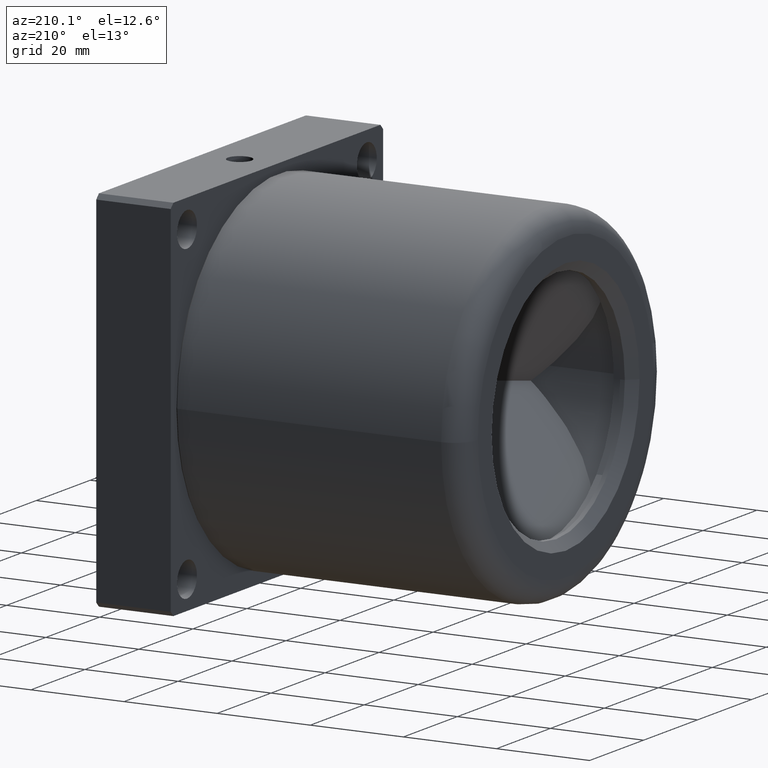
[diagram: clean part render]
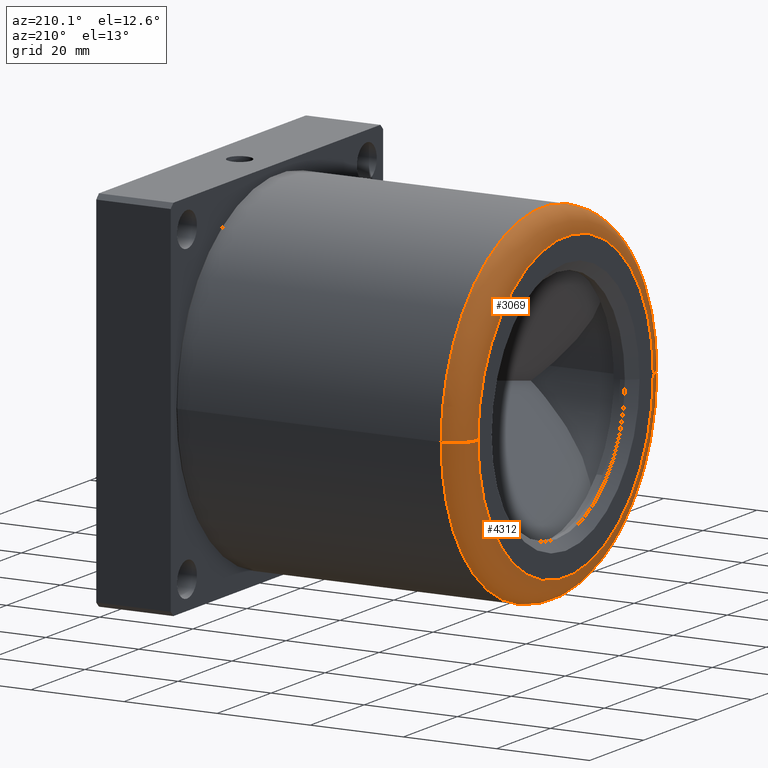
[diagram: same view with one multi-face feature highlighted, each face labeled with its STEP entity id]
A machine part, auxiliary view. The highlighted faces form ONE feature: a constant-radius fillet chain: 2 tangent blend faces with common blend radius 5 mm. The faces share edges in the B-rep.
Their STEP definitions:
[1] entity #3069 (Torus):
#529 = CARTESIAN_POINT ( 'NONE',  ( -73.00000000000000000, -118.0500000000000000, 1.387778780781446000E-014 ) ) ;
#561 = DIRECTION ( 'NONE',  ( -1.000000000000000000, 0.0000000000000000000, 0.0000000000000000000 ) ) ;
#643 = AXIS2_PLACEMENT_3D ( 'NONE', #8660, #3744, #9507 ) ;
#1159 = VERTEX_POINT ( 'NONE', #7956 ) ;
#1291 = EDGE_CURVE ( 'NONE', #1159, #10380, #4218, .T. ) ;
#1348 = DIRECTION ( 'NONE',  ( 1.000000000000000000, -0.0000000000000000000, -0.0000000000000000000 ) ) ;
#1677 = CIRCLE ( 'NONE', #643, 32.50000000000001400 ) ;
#1722 = DIRECTION ( 'NONE',  ( 0.0000000000000000000, -1.000000000000000000, 1.086874326387429400E-014 ) ) ;
#1805 = ORIENTED_EDGE ( 'NONE', *, *, #10848, .F. ) ;
#2223 = FACE_OUTER_BOUND ( 'NONE', #3879, .T. ) ;
#2277 = AXIS2_PLACEMENT_3D ( 'NONE', #529, #561, #6474 ) ;
#2603 = CARTESIAN_POINT ( 'NONE',  ( -73.00000000000000000, -85.54999999999999700, -3.393563682681004500E-013 ) ) ;
#2659 = CARTESIAN_POINT ( 'NONE',  ( -73.00000000000000000, -155.5499999999999800, 4.306405111967061300E-013 ) ) ;
#3005 = VERTEX_POINT ( 'NONE', #5536 ) ;
#3069 = ADVANCED_FACE ( 'NONE', ( #2223 ), #3407, .T. ) ;
#3080 = DIRECTION ( 'NONE',  ( -0.0000000000000000000, -1.099120794378904000E-014, -1.000000000000000000 ) ) ;
#3325 = AXIS2_PLACEMENT_3D ( 'NONE', #6385, #1348, #7172 ) ;
#3407 = TOROIDAL_SURFACE ( 'NONE', #2277, 32.50000000000000000, 5.000000000000000000 ) ;
#3744 = DIRECTION ( 'NONE',  ( -1.000000000000000000, 0.0000000000000000000, 0.0000000000000000000 ) ) ;
#3772 = ORIENTED_EDGE ( 'NONE', *, *, #9952, .F. ) ;
#3879 = EDGE_LOOP ( 'NONE', ( #1805, #6256, #8099, #3772 ) ) ;
#4218 = CIRCLE ( 'NONE', #8961, 5.000000000000004400 ) ;
#5493 = EDGE_CURVE ( 'NONE', #3005, #10380, #1677, .T. ) ;
#5536 = CARTESIAN_POINT ( 'NONE',  ( -78.00000000000000000, -150.5500000000000100, 3.710920459809582700E-013 ) ) ;
#6256 = ORIENTED_EDGE ( 'NONE', *, *, #1291, .T. ) ;
#6385 = CARTESIAN_POINT ( 'NONE',  ( -73.00000000000000000, -118.0500000000000000, 1.387778780781446000E-014 ) ) ;
#6474 = DIRECTION ( 'NONE',  ( 0.0000000000000000000, -1.000000000000000000, 1.099120794378904300E-014 ) ) ;
#7172 = DIRECTION ( 'NONE',  ( 0.0000000000000000000, -1.000000000000000000, 1.099120794378904200E-014 ) ) ;
#7956 = CARTESIAN_POINT ( 'NONE',  ( -73.00000000000000000, -80.55000000000001100, -3.982925100842746600E-013 ) ) ;
#8005 = CARTESIAN_POINT ( 'NONE',  ( -73.00000000000000000, -150.5500000000000100, 3.710920459809582700E-013 ) ) ;
#8099 = ORIENTED_EDGE ( 'NONE', *, *, #5493, .F. ) ;
#8660 = CARTESIAN_POINT ( 'NONE',  ( -78.00000000000000000, -118.0500000000000000, 1.387778780781446000E-014 ) ) ;
#8827 = AXIS2_PLACEMENT_3D ( 'NONE', #8005, #3080, #8840 ) ;
#8840 = DIRECTION ( 'NONE',  ( 0.0000000000000000000, 1.000000000000000000, -1.099120794378903200E-014 ) ) ;
#8961 = AXIS2_PLACEMENT_3D ( 'NONE', #2603, #9187, #1722 ) ;
#9187 = DIRECTION ( 'NONE',  ( 0.0000000000000000000, 1.086874326387430500E-014, 1.000000000000000000 ) ) ;
#9329 = CIRCLE ( 'NONE', #3325, 37.49999999999999300 ) ;
#9507 = DIRECTION ( 'NONE',  ( 0.0000000000000000000, -1.000000000000000000, 1.099120794378903600E-014 ) ) ;
#9952 = EDGE_CURVE ( 'NONE', #10547, #3005, #10057, .T. ) ;
#10057 = CIRCLE ( 'NONE', #8827, 5.000000000000004400 ) ;
#10380 = VERTEX_POINT ( 'NONE', #10745 ) ;
#10547 = VERTEX_POINT ( 'NONE', #2659 ) ;
#10745 = CARTESIAN_POINT ( 'NONE',  ( -78.00000000000000000, -85.54999999999999700, -3.665282264277862300E-013 ) ) ;
#10848 = EDGE_CURVE ( 'NONE', #1159, #10547, #9329, .T. ) ;
[2] entity #4312 (Torus):
#1159 = VERTEX_POINT ( 'NONE', #7956 ) ;
#1291 = EDGE_CURVE ( 'NONE', #1159, #10380, #4218, .T. ) ;
#1669 = EDGE_CURVE ( 'NONE', #10380, #3005, #5820, .T. ) ;
#1722 = DIRECTION ( 'NONE',  ( 0.0000000000000000000, -1.000000000000000000, 1.086874326387429400E-014 ) ) ;
#1806 = ORIENTED_EDGE ( 'NONE', *, *, #9952, .T. ) ;
#2478 = ORIENTED_EDGE ( 'NONE', *, *, #3917, .F. ) ;
#2603 = CARTESIAN_POINT ( 'NONE',  ( -73.00000000000000000, -85.54999999999999700, -3.393563682681004500E-013 ) ) ;
#2659 = CARTESIAN_POINT ( 'NONE',  ( -73.00000000000000000, -155.5499999999999800, 4.306405111967061300E-013 ) ) ;
#3005 = VERTEX_POINT ( 'NONE', #5536 ) ;
#3080 = DIRECTION ( 'NONE',  ( -0.0000000000000000000, -1.099120794378904000E-014, -1.000000000000000000 ) ) ;
#3105 = AXIS2_PLACEMENT_3D ( 'NONE', #4872, #10626, #5700 ) ;
#3572 = CARTESIAN_POINT ( 'NONE',  ( -73.00000000000000000, -118.0500000000000000, 1.387778780781446000E-014 ) ) ;
#3917 = EDGE_CURVE ( 'NONE', #10547, #1159, #8756, .T. ) ;
#4218 = CIRCLE ( 'NONE', #8961, 5.000000000000004400 ) ;
#4312 = ADVANCED_FACE ( 'NONE', ( #6806 ), #6037, .T. ) ;
#4417 = DIRECTION ( 'NONE',  ( 0.0000000000000000000, -1.000000000000000000, 1.099120794378904300E-014 ) ) ;
#4789 = CARTESIAN_POINT ( 'NONE',  ( -73.00000000000000000, -118.0500000000000000, 1.387778780781446000E-014 ) ) ;
#4872 = CARTESIAN_POINT ( 'NONE',  ( -78.00000000000000000, -118.0500000000000000, 1.387778780781446000E-014 ) ) ;
#4989 = ORIENTED_EDGE ( 'NONE', *, *, #1669, .F. ) ;
#5536 = CARTESIAN_POINT ( 'NONE',  ( -78.00000000000000000, -150.5500000000000100, 3.710920459809582700E-013 ) ) ;
#5622 = DIRECTION ( 'NONE',  ( 0.0000000000000000000, -1.000000000000000000, 1.099120794378904200E-014 ) ) ;
#5700 = DIRECTION ( 'NONE',  ( 0.0000000000000000000, -1.000000000000000000, 1.099120794378903600E-014 ) ) ;
#5820 = CIRCLE ( 'NONE', #3105, 32.50000000000001400 ) ;
#6037 = TOROIDAL_SURFACE ( 'NONE', #10192, 32.50000000000000000, 5.000000000000000000 ) ;
#6806 = FACE_OUTER_BOUND ( 'NONE', #8687, .T. ) ;
#7956 = CARTESIAN_POINT ( 'NONE',  ( -73.00000000000000000, -80.55000000000001100, -3.982925100842746600E-013 ) ) ;
#8005 = CARTESIAN_POINT ( 'NONE',  ( -73.00000000000000000, -150.5500000000000100, 3.710920459809582700E-013 ) ) ;
#8582 = AXIS2_PLACEMENT_3D ( 'NONE', #4789, #10538, #5622 ) ;
#8687 = EDGE_LOOP ( 'NONE', ( #9143, #2478, #1806, #4989 ) ) ;
#8756 = CIRCLE ( 'NONE', #8582, 37.49999999999999300 ) ;
#8827 = AXIS2_PLACEMENT_3D ( 'NONE', #8005, #3080, #8840 ) ;
#8840 = DIRECTION ( 'NONE',  ( 0.0000000000000000000, 1.000000000000000000, -1.099120794378903200E-014 ) ) ;
#8961 = AXIS2_PLACEMENT_3D ( 'NONE', #2603, #9187, #1722 ) ;
#9143 = ORIENTED_EDGE ( 'NONE', *, *, #1291, .F. ) ;
#9187 = DIRECTION ( 'NONE',  ( 0.0000000000000000000, 1.086874326387430500E-014, 1.000000000000000000 ) ) ;
#9337 = DIRECTION ( 'NONE',  ( -1.000000000000000000, 0.0000000000000000000, 0.0000000000000000000 ) ) ;
#9952 = EDGE_CURVE ( 'NONE', #10547, #3005, #10057, .T. ) ;
#10057 = CIRCLE ( 'NONE', #8827, 5.000000000000004400 ) ;
#10192 = AXIS2_PLACEMENT_3D ( 'NONE', #3572, #9337, #4417 ) ;
#10380 = VERTEX_POINT ( 'NONE', #10745 ) ;
#10538 = DIRECTION ( 'NONE',  ( 1.000000000000000000, -0.0000000000000000000, -0.0000000000000000000 ) ) ;
#10547 = VERTEX_POINT ( 'NONE', #2659 ) ;
#10626 = DIRECTION ( 'NONE',  ( -1.000000000000000000, 0.0000000000000000000, 0.0000000000000000000 ) ) ;
#10745 = CARTESIAN_POINT ( 'NONE',  ( -78.00000000000000000, -85.54999999999999700, -3.665282264277862300E-013 ) ) ;